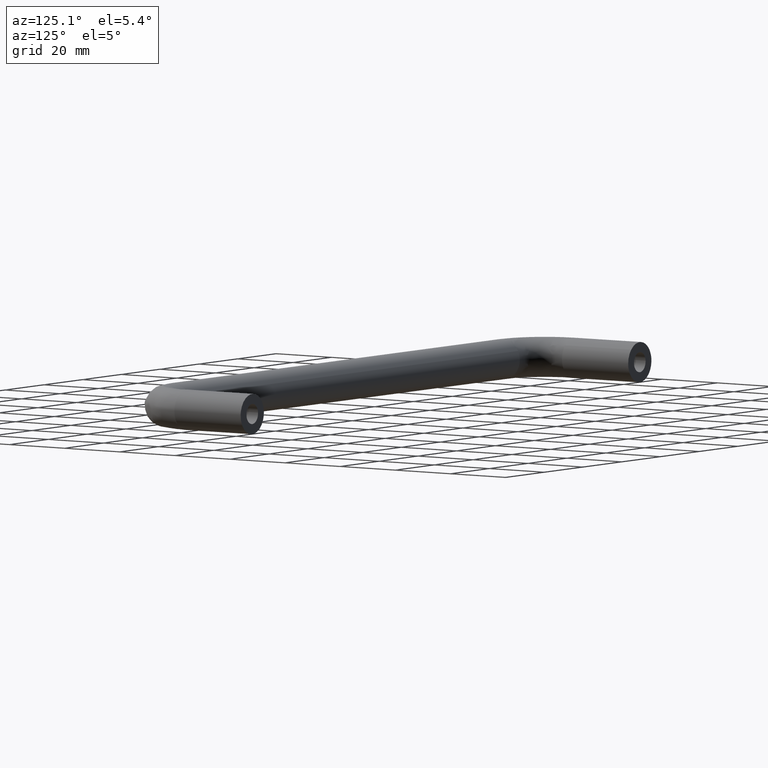
[diagram: clean part render]
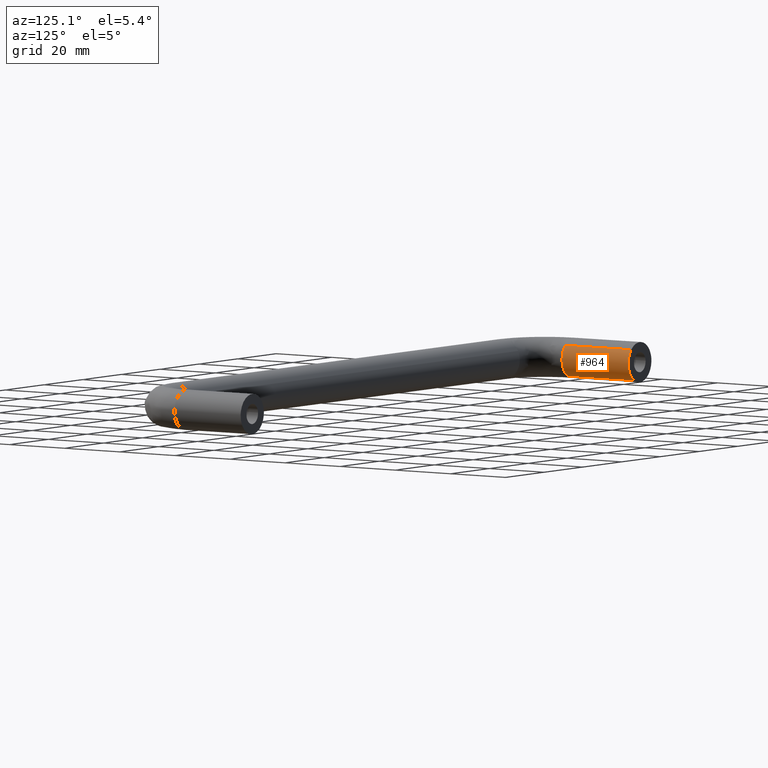
[diagram: same view with one face highlighted and labeled with its STEP entity id]
A machine part, auxiliary view. The second image highlights one B-rep face of the part: STEP entity #964.
In plain terms, the highlighted face is a freeform B-spline surface patch.
Its self-contained STEP definition (entity closure, byte-faithful):
#870=CARTESIAN_POINT('',(2.905318393526275,0.600000000086308,-5.249678564658782));
#871=CARTESIAN_POINT('',(3.528453658424199,0.600000000086308,-4.904818146165622));
#872=CARTESIAN_POINT('',(4.053541245693961,0.600000000086308,-4.423664020860743));
#873=CARTESIAN_POINT('',(8.477205266554705,0.600000000086308,-0.370122775166782));
#874=CARTESIAN_POINT('',(4.423664020860743,0.600000000086308,4.053541245693961));
#875=CARTESIAN_POINT('',(2.905318393526280,-24.615000003540704,-5.249678564658782));
#876=CARTESIAN_POINT('',(3.528453658424203,-24.615000003540700,-4.904818146165622));
#877=CARTESIAN_POINT('',(4.053541245693965,-24.615000003540700,-4.423664020860743));
#878=CARTESIAN_POINT('',(8.477205266554709,-24.615000003540700,-0.370122775166782));
#879=CARTESIAN_POINT('',(4.423664020860747,-24.615000003540700,4.053541245693961));
#887=(BOUNDED_SURFACE()B_SPLINE_SURFACE(2,1,((#870,#875),(#871,#876),(#872,#877),(#873,#878),(#874,#879)),.UNSPECIFIED.,.F.,.F.,.U.)B_SPLINE_SURFACE_WITH_KNOTS((3,2,3),(2,2),(0.0,1.590580079512687,11.531705576466971),(0.0,25.215000003627011),.UNSPECIFIED.)GEOMETRIC_REPRESENTATION_ITEM()RATIONAL_B_SPLINE_SURFACE(((0.921270302782944,0.921270302782944),(0.953137084989848,0.953137084989848),(1.0,1.0),(0.707106781186548,0.707106781186548),(1.0,1.0)))REPRESENTATION_ITEM('')SURFACE());
#888=CARTESIAN_POINT('',(2.905318393534327,-24.0,-5.249678564654328));
#889=VERTEX_POINT('',#888);
#890=CARTESIAN_POINT('',(6.000000000000003,-24.0,0.0));
#891=VERTEX_POINT('',#890);
#892=CARTESIAN_POINT('',(2.905318393534328,-24.0,-5.249678564654329));
#893=CARTESIAN_POINT('',(6.000000000000004,-24.000000000000004,-3.536995534122605));
#894=CARTESIAN_POINT('',(6.000000000000003,-24.0,0.0));
#902=(BOUNDED_CURVE()B_SPLINE_CURVE(2,(#892,#893,#894),.UNSPECIFIED.,.F.,.U.)B_SPLINE_CURVE_WITH_KNOTS((3,3),(0.332484288971113,0.500000000000000),.UNSPECIFIED.)CURVE()GEOMETRIC_REPRESENTATION_ITEM()RATIONAL_B_SPLINE_CURVE((0.870495137452581,0.803743136779700,1.0))REPRESENTATION_ITEM(''));
#903=EDGE_CURVE('',#889,#891,#902,.T.);
#904=ORIENTED_EDGE('',*,*,#903,.F.);
#905=CARTESIAN_POINT('',(2.905318393534791,0.0,-5.249678564654071));
#906=VERTEX_POINT('',#905);
#907=CARTESIAN_POINT('',(2.905318393534791,0.0,-5.249678564654071));
#908=CARTESIAN_POINT('',(2.905318393534327,-24.0,-5.249678564654328));
#909=QUASI_UNIFORM_CURVE('',1,(#907,#908),.UNSPECIFIED.,.F.,.U.);
#910=EDGE_CURVE('',#906,#889,#909,.T.);
#911=ORIENTED_EDGE('',*,*,#910,.F.);
#912=CARTESIAN_POINT('',(6.0,0.0,0.0));
#913=VERTEX_POINT('',#912);
#914=CARTESIAN_POINT('',(2.905318393534791,0.0,-5.249678564654071));
#915=CARTESIAN_POINT('',(5.999999999999999,0.0,-3.536995534121885));
#916=CARTESIAN_POINT('',(6.0,0.0,0.0));
#924=(BOUNDED_CURVE()B_SPLINE_CURVE(2,(#914,#915,#916),.UNSPECIFIED.,.F.,.U.)B_SPLINE_CURVE_WITH_KNOTS((3,3),(0.332484288971140,0.500000000000000),.UNSPECIFIED.)CURVE()GEOMETRIC_REPRESENTATION_ITEM()RATIONAL_B_SPLINE_CURVE((0.870495137452559,0.803743136779733,1.0))REPRESENTATION_ITEM(''));
#925=EDGE_CURVE('',#906,#913,#924,.T.);
#926=ORIENTED_EDGE('',*,*,#925,.T.);
#927=CARTESIAN_POINT('',(4.423666221885295,1.110223E-016,4.053538843694539));
#928=VERTEX_POINT('',#927);
#929=CARTESIAN_POINT('',(6.0,0.0,0.0));
#930=CARTESIAN_POINT('',(6.000000000000001,0.0,2.333270515809976));
#931=CARTESIAN_POINT('',(4.423666221885295,1.110223E-016,4.053538843694540));
#939=(BOUNDED_CURVE()B_SPLINE_CURVE(2,(#929,#930,#931),.UNSPECIFIED.,.F.,.U.)B_SPLINE_CURVE_WITH_KNOTS((3,3),(0.500000000000000,0.618415127114441),.UNSPECIFIED.)CURVE()GEOMETRIC_REPRESENTATION_ITEM()RATIONAL_B_SPLINE_CURVE((1.0,0.861268049052989,0.853959790955776))REPRESENTATION_ITEM(''));
#940=EDGE_CURVE('',#913,#928,#939,.T.);
#941=ORIENTED_EDGE('',*,*,#940,.T.);
#942=CARTESIAN_POINT('',(4.423666076306624,-24.000000000093660,4.053539002548424));
#943=VERTEX_POINT('',#942);
#944=CARTESIAN_POINT('',(4.423666221885295,1.110223E-016,4.053538843694539));
#945=CARTESIAN_POINT('',(4.423666076306624,-24.000000000093660,4.053539002548424));
#946=QUASI_UNIFORM_CURVE('',1,(#944,#945),.UNSPECIFIED.,.F.,.U.);
#947=EDGE_CURVE('',#928,#943,#946,.T.);
#948=ORIENTED_EDGE('',*,*,#947,.T.);
#949=CARTESIAN_POINT('',(6.000000000000003,-24.0,0.0));
#950=CARTESIAN_POINT('',(6.000000000000004,-24.000000000000004,2.333270639824936));
#951=CARTESIAN_POINT('',(4.423666076306624,-24.000000000093650,4.053539002548424));
#959=(BOUNDED_CURVE()B_SPLINE_CURVE(2,(#949,#950,#951),.UNSPECIFIED.,.F.,.U.)B_SPLINE_CURVE_WITH_KNOTS((3,3),(0.500000000000000,0.618415132535130),.UNSPECIFIED.)CURVE()GEOMETRIC_REPRESENTATION_ITEM()RATIONAL_B_SPLINE_CURVE((1.0,0.861268042702257,0.853959790286676))REPRESENTATION_ITEM(''));
#960=EDGE_CURVE('',#891,#943,#959,.T.);
#961=ORIENTED_EDGE('',*,*,#960,.F.);
#962=EDGE_LOOP('',(#904,#911,#926,#941,#948,#961));
#963=FACE_OUTER_BOUND('',#962,.T.);
#964=ADVANCED_FACE('',(#963),#887,.T.);